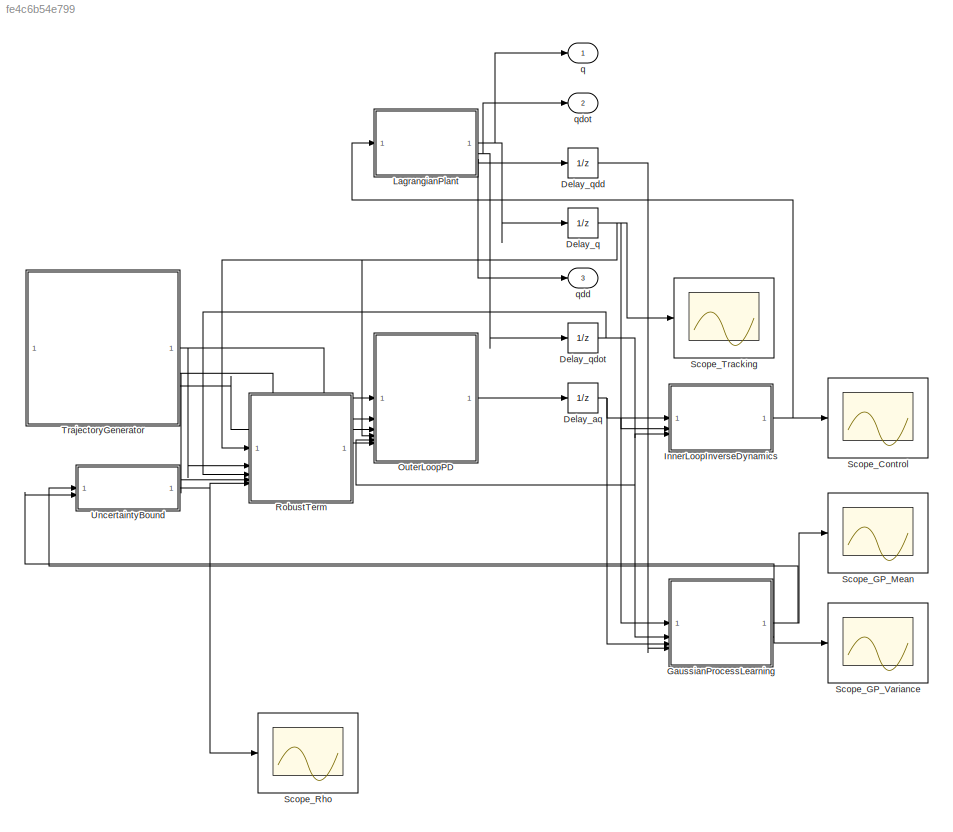
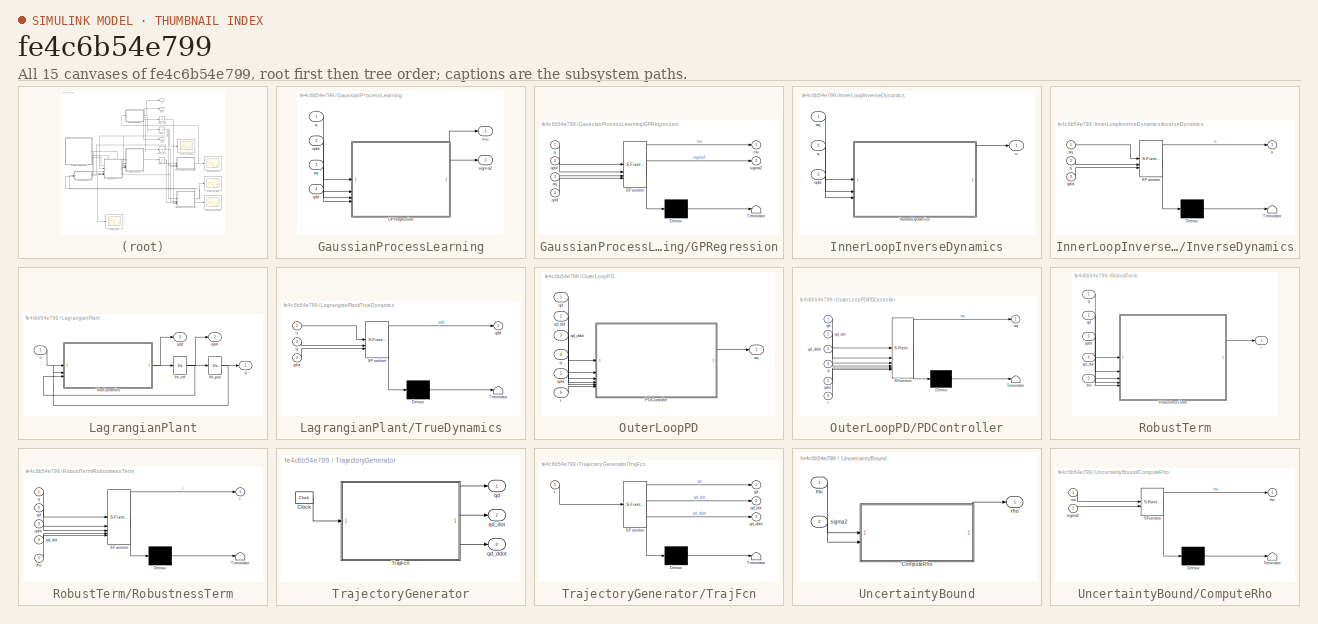
[diagram: thumbnail index - all 15 canvases of the model, root first then tree order]
MODEL slx_fe4c6b54e799
KIND model
CONFIG AbsTol = auto
CONFIG EnableMultiTasking = off
CONFIG FixedStep = auto
CONFIG MaxStep = auto
CONFIG MinStep = auto
CONFIG RelTol = 1e-3
CONFIG SampleTimeConstraint = Unconstrained
CONFIG SolverName = ode45
CONFIG StartTime = 0.0
CONFIG StopTime = 20
BLOCK [UnitDelay] Delay_aq
  HasFrameUpgradeWarning = on
  InitialCondition = [0;0]
  SampleTime = -1
BLOCK [UnitDelay] Delay_q
  HasFrameUpgradeWarning = on
  InitialCondition = [0;0]
  SampleTime = -1
BLOCK [UnitDelay] Delay_qdd
  HasFrameUpgradeWarning = on
  InitialCondition = [0;0]
  SampleTime = -1
BLOCK [UnitDelay] Delay_qdot
  HasFrameUpgradeWarning = on
  InitialCondition = [0;0]
  SampleTime = -1
BLOCK [SubSystem] GaussianProcessLearning
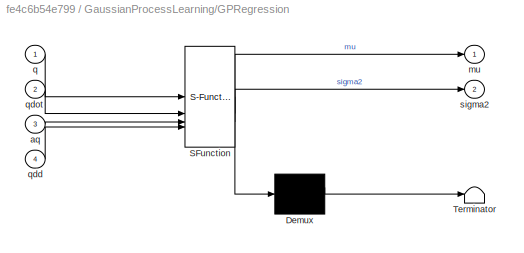
BLOCK [SubSystem] GaussianProcessLearning/GPRegression
  ErrorFcn = Stateflow.Translate.translate
  PermitHierarchicalResolution = ExplicitOnly
  SFBlockType = MATLAB Function
  TreatAsAtomicUnit = on
BLOCK [Demux] GaussianProcessLearning/GPRegression/ Demux 
  Outputs = 1
BLOCK [S-Function] GaussianProcessLearning/GPRegression/ SFunction 
  EnableBusSupport = off
  FunctionName = sf_sfun
  PortCounts = [4 3]
  SFcnIsStateOwnerBlock = off
  SFunctionDeploymentMode = off
  Tag = Stateflow S-Function 5
BLOCK [Terminator] GaussianProcessLearning/GPRegression/ Terminator 
BLOCK [Inport] GaussianProcessLearning/GPRegression/aq
  Port = 3
BLOCK [Outport] GaussianProcessLearning/GPRegression/mu
BLOCK [Inport] GaussianProcessLearning/GPRegression/q
BLOCK [Inport] GaussianProcessLearning/GPRegression/qdd
  Port = 4
BLOCK [Inport] GaussianProcessLearning/GPRegression/qdot
  Port = 2
BLOCK [Outport] GaussianProcessLearning/GPRegression/sigma2
  Port = 2
BLOCK [Inport] GaussianProcessLearning/aq
  Port = 3
  PortDimensions = 2
BLOCK [Outport] GaussianProcessLearning/mu
  PortDimensions = 2
BLOCK [Inport] GaussianProcessLearning/q
  PortDimensions = 2
BLOCK [Inport] GaussianProcessLearning/qdd
  Port = 4
  PortDimensions = 2
BLOCK [Inport] GaussianProcessLearning/qdot
  Port = 2
  PortDimensions = 2
BLOCK [Outport] GaussianProcessLearning/sigma2
  Port = 2
  PortDimensions = 2
BLOCK [SubSystem] InnerLoopInverseDynamics
BLOCK [SubSystem] InnerLoopInverseDynamics/InverseDynamics
  ErrorFcn = Stateflow.Translate.translate
  PermitHierarchicalResolution = ExplicitOnly
  SFBlockType = MATLAB Function
  TreatAsAtomicUnit = on
BLOCK [Demux] InnerLoopInverseDynamics/InverseDynamics/ Demux 
  Outputs = 1
BLOCK [S-Function] InnerLoopInverseDynamics/InverseDynamics/ SFunction 
  EnableBusSupport = off
  FunctionName = sf_sfun
  PortCounts = [3 2]
  SFcnIsStateOwnerBlock = off
  SFunctionDeploymentMode = off
  Tag = Stateflow S-Function 4
BLOCK [Terminator] InnerLoopInverseDynamics/InverseDynamics/ Terminator 
BLOCK [Inport] InnerLoopInverseDynamics/InverseDynamics/aq
BLOCK [Inport] InnerLoopInverseDynamics/InverseDynamics/q
  Port = 2
BLOCK [Inport] InnerLoopInverseDynamics/InverseDynamics/qdot
  Port = 3
BLOCK [Outport] InnerLoopInverseDynamics/InverseDynamics/u
BLOCK [Inport] InnerLoopInverseDynamics/aq
  PortDimensions = 2
BLOCK [Inport] InnerLoopInverseDynamics/q
  Port = 2
  PortDimensions = 2
BLOCK [Inport] InnerLoopInverseDynamics/qdot
  Port = 3
  PortDimensions = 2
BLOCK [Outport] InnerLoopInverseDynamics/u
  PortDimensions = 2
BLOCK [SubSystem] LagrangianPlant
BLOCK [Integrator] LagrangianPlant/Int_pos
  InitialCondition = [0; 0]
BLOCK [Integrator] LagrangianPlant/Int_vel
  InitialCondition = [0; 0]
BLOCK [SubSystem] LagrangianPlant/TrueDynamics
  ErrorFcn = Stateflow.Translate.translate
  PermitHierarchicalResolution = ExplicitOnly
  SFBlockType = MATLAB Function
  TreatAsAtomicUnit = on
BLOCK [Demux] LagrangianPlant/TrueDynamics/ Demux 
  Outputs = 1
BLOCK [S-Function] LagrangianPlant/TrueDynamics/ SFunction 
  EnableBusSupport = off
  FunctionName = sf_sfun
  PortCounts = [3 2]
  SFcnIsStateOwnerBlock = off
  SFunctionDeploymentMode = off
  Tag = Stateflow S-Function 7
BLOCK [Terminator] LagrangianPlant/TrueDynamics/ Terminator 
BLOCK [Inport] LagrangianPlant/TrueDynamics/q
  Port = 2
BLOCK [Outport] LagrangianPlant/TrueDynamics/qdd
BLOCK [Inport] LagrangianPlant/TrueDynamics/qdot
  Port = 3
BLOCK [Inport] LagrangianPlant/TrueDynamics/u
BLOCK [Outport] LagrangianPlant/q
  PortDimensions = 2
BLOCK [Outport] LagrangianPlant/qdd
  Port = 3
  PortDimensions = 2
BLOCK [Outport] LagrangianPlant/qdot
  Port = 2
  PortDimensions = 2
BLOCK [Inport] LagrangianPlant/u
  PortDimensions = 2
BLOCK [SubSystem] OuterLoopPD
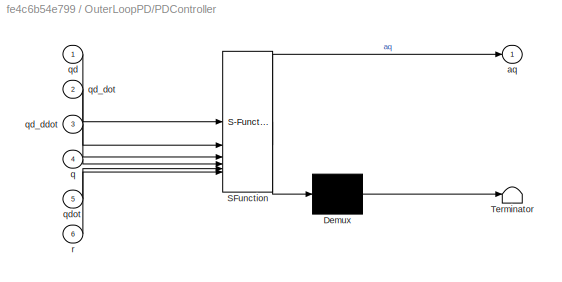
BLOCK [SubSystem] OuterLoopPD/PDController
  ErrorFcn = Stateflow.Translate.translate
  PermitHierarchicalResolution = ExplicitOnly
  SFBlockType = MATLAB Function
  TreatAsAtomicUnit = on
BLOCK [Demux] OuterLoopPD/PDController/ Demux 
  Outputs = 1
BLOCK [S-Function] OuterLoopPD/PDController/ SFunction 
  EnableBusSupport = off
  FunctionName = sf_sfun
  PortCounts = [6 2]
  SFcnIsStateOwnerBlock = off
  SFunctionDeploymentMode = off
  Tag = Stateflow S-Function 1
BLOCK [Terminator] OuterLoopPD/PDController/ Terminator 
BLOCK [Outport] OuterLoopPD/PDController/aq
BLOCK [Inport] OuterLoopPD/PDController/q
  Port = 4
BLOCK [Inport] OuterLoopPD/PDController/qd
BLOCK [Inport] OuterLoopPD/PDController/qd_ddot
  Port = 3
BLOCK [Inport] OuterLoopPD/PDController/qd_dot
  Port = 2
BLOCK [Inport] OuterLoopPD/PDController/qdot
  Port = 5
BLOCK [Inport] OuterLoopPD/PDController/r
  Port = 6
BLOCK [Outport] OuterLoopPD/aq
  PortDimensions = 2
BLOCK [Inport] OuterLoopPD/q
  Port = 4
  PortDimensions = 2
BLOCK [Inport] OuterLoopPD/qd
  PortDimensions = 2
BLOCK [Inport] OuterLoopPD/qd_ddot
  Port = 3
  PortDimensions = 2
BLOCK [Inport] OuterLoopPD/qd_dot
  Port = 2
  PortDimensions = 2
BLOCK [Inport] OuterLoopPD/qdot
  Port = 5
  PortDimensions = 2
BLOCK [Inport] OuterLoopPD/r
  Port = 6
  PortDimensions = 2
BLOCK [SubSystem] RobustTerm
BLOCK [SubSystem] RobustTerm/RobustnessTerm
  ErrorFcn = Stateflow.Translate.translate
  PermitHierarchicalResolution = ExplicitOnly
  SFBlockType = MATLAB Function
  TreatAsAtomicUnit = on
BLOCK [Demux] RobustTerm/RobustnessTerm/ Demux 
  Outputs = 1
BLOCK [S-Function] RobustTerm/RobustnessTerm/ SFunction 
  EnableBusSupport = off
  FunctionName = sf_sfun
  PortCounts = [5 2]
  SFcnIsStateOwnerBlock = off
  SFunctionDeploymentMode = off
  Tag = Stateflow S-Function 3
BLOCK [Terminator] RobustTerm/RobustnessTerm/ Terminator 
BLOCK [Inport] RobustTerm/RobustnessTerm/q
BLOCK [Inport] RobustTerm/RobustnessTerm/qd
  Port = 2
BLOCK [Inport] RobustTerm/RobustnessTerm/qd_dot
  Port = 4
BLOCK [Inport] RobustTerm/RobustnessTerm/qdot
  Port = 3
BLOCK [Outport] RobustTerm/RobustnessTerm/r
BLOCK [Inport] RobustTerm/RobustnessTerm/rho
  Port = 5
BLOCK [Inport] RobustTerm/q
  PortDimensions = 2
BLOCK [Inport] RobustTerm/qd
  Port = 2
  PortDimensions = 2
BLOCK [Inport] RobustTerm/qd_dot
  Port = 4
  PortDimensions = 2
BLOCK [Inport] RobustTerm/qdot
  Port = 3
  PortDimensions = 2
BLOCK [Outport] RobustTerm/r
  PortDimensions = 2
BLOCK [Inport] RobustTerm/rho
  Port = 5
  PortDimensions = 1
BLOCK [Scope] Scope_Control
  DataLogging = on
  DataLoggingVariableName = control_u
  Floating = off
  GraphicalSettings = {"GraphicalSettings":{"LegacySettings":true,"Style":{"Style":{"PlotType":"Auto"}}}}
  NumInputPorts = 1
  WasSavedAsWebScope = on
BLOCK [Scope] Scope_GP_Mean
  DataLogging = on
  DataLoggingVariableName = gp_mean
  Floating = off
  GraphicalSettings = {"GraphicalSettings":{"LegacySettings":true,"Style":{"Style":{"PlotType":"Auto"}}}}
  NumInputPorts = 1
  WasSavedAsWebScope = on
BLOCK [Scope] Scope_GP_Variance
  DataLogging = on
  DataLoggingVariableName = gp_var
  Floating = off
  GraphicalSettings = {"GraphicalSettings":{"LegacySettings":true,"Style":{"Style":{"PlotType":"Auto"}}}}
  NumInputPorts = 1
  WasSavedAsWebScope = on
BLOCK [Scope] Scope_Rho
  DataLogging = on
  DataLoggingVariableName = rho_bound
  Floating = off
  GraphicalSettings = {"GraphicalSettings":{"LegacySettings":true,"Style":{"Style":{"PlotType":"Auto"}}}}
  NumInputPorts = 1
  WasSavedAsWebScope = on
BLOCK [Scope] Scope_Tracking
  DataLogging = on
  DataLoggingVariableName = tracking
  Floating = off
  GraphicalSettings = {"GraphicalSettings":{"LegacySettings":true,"Style":{"Style":{"PlotType":"Auto"}}}}
  NumInputPorts = 1
  WasSavedAsWebScope = on
BLOCK [SubSystem] TrajectoryGenerator
BLOCK [Clock] TrajectoryGenerator/Clock
BLOCK [SubSystem] TrajectoryGenerator/TrajFcn
  ErrorFcn = Stateflow.Translate.translate
  PermitHierarchicalResolution = ExplicitOnly
  SFBlockType = MATLAB Function
  TreatAsAtomicUnit = on
BLOCK [Demux] TrajectoryGenerator/TrajFcn/ Demux 
  Outputs = 1
BLOCK [S-Function] TrajectoryGenerator/TrajFcn/ SFunction 
  EnableBusSupport = off
  FunctionName = sf_sfun
  PortCounts = [1 4]
  SFcnIsStateOwnerBlock = off
  SFunctionDeploymentMode = off
  Tag = Stateflow S-Function 2
BLOCK [Terminator] TrajectoryGenerator/TrajFcn/ Terminator 
BLOCK [Outport] TrajectoryGenerator/TrajFcn/qd
BLOCK [Outport] TrajectoryGenerator/TrajFcn/qd_ddot
  Port = 3
BLOCK [Outport] TrajectoryGenerator/TrajFcn/qd_dot
  Port = 2
BLOCK [Inport] TrajectoryGenerator/TrajFcn/t
BLOCK [Outport] TrajectoryGenerator/qd
BLOCK [Outport] TrajectoryGenerator/qd_ddot
  Port = 3
BLOCK [Outport] TrajectoryGenerator/qd_dot
  Port = 2
BLOCK [SubSystem] UncertaintyBound
BLOCK [SubSystem] UncertaintyBound/ComputeRho
  ErrorFcn = Stateflow.Translate.translate
  PermitHierarchicalResolution = ExplicitOnly
  SFBlockType = MATLAB Function
  TreatAsAtomicUnit = on
BLOCK [Demux] UncertaintyBound/ComputeRho/ Demux 
  Outputs = 1
BLOCK [S-Function] UncertaintyBound/ComputeRho/ SFunction 
  EnableBusSupport = off
  FunctionName = sf_sfun
  PortCounts = [2 2]
  SFcnIsStateOwnerBlock = off
  SFunctionDeploymentMode = off
  Tag = Stateflow S-Function 6
BLOCK [Terminator] UncertaintyBound/ComputeRho/ Terminator 
BLOCK [Inport] UncertaintyBound/ComputeRho/mu
BLOCK [Outport] UncertaintyBound/ComputeRho/rho
BLOCK [Inport] UncertaintyBound/ComputeRho/sigma2
  Port = 2
BLOCK [Inport] UncertaintyBound/mu
  PortDimensions = 2
BLOCK [Outport] UncertaintyBound/rho
  PortDimensions = 1
BLOCK [Inport] UncertaintyBound/sigma2
  Port = 2
  PortDimensions = 2
BLOCK [Outport] q
BLOCK [Outport] qdd
  Port = 3
BLOCK [Outport] qdot
  Port = 2
NET Delay_aq:1 -> GaussianProcessLearning:3, InnerLoopInverseDynamics:1
NET Delay_q:1 -> GaussianProcessLearning:1, InnerLoopInverseDynamics:2, OuterLoopPD:4, RobustTerm:1, Scope_Tracking:1
LINE Delay_qdd:1 -> GaussianProcessLearning:4
NET Delay_qdot:1 -> GaussianProcessLearning:2, InnerLoopInverseDynamics:3, OuterLoopPD:5, RobustTerm:3
LINE GaussianProcessLearning/GPRegression:1 -> GaussianProcessLearning/mu:1
LINE GaussianProcessLearning/GPRegression:2 -> GaussianProcessLearning/sigma2:1
LINE GaussianProcessLearning/aq:1 -> GaussianProcessLearning/GPRegression:3
LINE GaussianProcessLearning/q:1 -> GaussianProcessLearning/GPRegression:1
LINE GaussianProcessLearning/qdd:1 -> GaussianProcessLearning/GPRegression:4
LINE GaussianProcessLearning/qdot:1 -> GaussianProcessLearning/GPRegression:2
NET GaussianProcessLearning:1 -> Scope_GP_Mean:1, UncertaintyBound:1
NET GaussianProcessLearning:2 -> Scope_GP_Variance:1, UncertaintyBound:2
LINE InnerLoopInverseDynamics/InverseDynamics:1 -> InnerLoopInverseDynamics/u:1
LINE InnerLoopInverseDynamics/aq:1 -> InnerLoopInverseDynamics/InverseDynamics:1
LINE InnerLoopInverseDynamics/q:1 -> InnerLoopInverseDynamics/InverseDynamics:2
LINE InnerLoopInverseDynamics/qdot:1 -> InnerLoopInverseDynamics/InverseDynamics:3
NET InnerLoopInverseDynamics:1 -> LagrangianPlant:1, Scope_Control:1
NET LagrangianPlant/Int_pos:1 -> LagrangianPlant/TrueDynamics:2, LagrangianPlant/q:1
NET LagrangianPlant/Int_vel:1 -> LagrangianPlant/Int_pos:1, LagrangianPlant/TrueDynamics:3, LagrangianPlant/qdot:1
NET LagrangianPlant/TrueDynamics:1 -> LagrangianPlant/Int_vel:1, LagrangianPlant/qdd:1
LINE LagrangianPlant/u:1 -> LagrangianPlant/TrueDynamics:1
NET LagrangianPlant:1 -> Delay_q:1, q:1
NET LagrangianPlant:2 -> Delay_qdot:1, qdot:1
NET LagrangianPlant:3 -> Delay_qdd:1, qdd:1
LINE OuterLoopPD/PDController:1 -> OuterLoopPD/aq:1
LINE OuterLoopPD/q:1 -> OuterLoopPD/PDController:4
LINE OuterLoopPD/qd:1 -> OuterLoopPD/PDController:1
LINE OuterLoopPD/qd_ddot:1 -> OuterLoopPD/PDController:3
LINE OuterLoopPD/qd_dot:1 -> OuterLoopPD/PDController:2
LINE OuterLoopPD/qdot:1 -> OuterLoopPD/PDController:5
LINE OuterLoopPD/r:1 -> OuterLoopPD/PDController:6
LINE OuterLoopPD:1 -> Delay_aq:1
LINE RobustTerm/RobustnessTerm:1 -> RobustTerm/r:1
LINE RobustTerm/q:1 -> RobustTerm/RobustnessTerm:1
LINE RobustTerm/qd:1 -> RobustTerm/RobustnessTerm:2
LINE RobustTerm/qd_dot:1 -> RobustTerm/RobustnessTerm:4
LINE RobustTerm/qdot:1 -> RobustTerm/RobustnessTerm:3
LINE RobustTerm/rho:1 -> RobustTerm/RobustnessTerm:5
LINE RobustTerm:1 -> OuterLoopPD:6
LINE TrajectoryGenerator/Clock:1 -> TrajectoryGenerator/TrajFcn:1
LINE TrajectoryGenerator/TrajFcn:1 -> TrajectoryGenerator/qd:1
LINE TrajectoryGenerator/TrajFcn:2 -> TrajectoryGenerator/qd_dot:1
LINE TrajectoryGenerator/TrajFcn:3 -> TrajectoryGenerator/qd_ddot:1
NET TrajectoryGenerator:1 -> OuterLoopPD:1, RobustTerm:2
NET TrajectoryGenerator:2 -> OuterLoopPD:2, RobustTerm:4
LINE TrajectoryGenerator:3 -> OuterLoopPD:3
LINE UncertaintyBound/ComputeRho:1 -> UncertaintyBound/rho:1
LINE UncertaintyBound/mu:1 -> UncertaintyBound/ComputeRho:1
LINE UncertaintyBound/sigma2:1 -> UncertaintyBound/ComputeRho:2
NET UncertaintyBound:1 -> RobustTerm:5, Scope_Rho:1
note: NET lines group one-source signal fan-out (src -> all destinations, sorted); 1:1 wires keep LINE
CHART OuterLoopPD/PDController states=1 transitions=1
  STATE_LABEL 'eML_blk_kernel()'
  STATE_LABEL 'SCRIPT:\nfunction aq = PDController(qd,qd_dot,qd_ddot,q,qdot,r)\n%#codegen\n% Equation 11: aq = q̈d + KP(qd-q) + KD(q̇d-q̇) + r\naq = zeros(2,1);\nqd     = reshape(qd, [2,1]);\nqd_dot = reshape(qd_dot, [2,1]);\nqd_ddot= reshape(qd_ddot, [2,1]);\nq      = reshape(q, [2,1]);\nqdot   = reshape(qdot, [2,1]);\nr      = reshape(r, [2,1]);\nKP = [50 0; 0 30];\nKD = [12 0; 0 8];\ne1 = qd - q;\ne2 = qd_dot - qdot;\naq = ...<+32ch>'
CHART TrajectoryGenerator/TrajFcn states=1 transitions=1
  STATE_LABEL 'eML_blk_kernel()'
  STATE_LABEL 'SCRIPT:\nfunction [qd, qd_dot, qd_ddot] = TrajFcn(t)\n%#codegen\n% Sinusoidal trajectories (Section VI)\nA1 = 1; w1 = 1;\nqd1     = A1*sin(w1*t);\nqd1_dot = A1*w1*cos(w1*t);\nqd1_ddot= -A1*w1^2*sin(w1*t);\nA2 = 0.5; w2 = 0.5;\nqd2     = A2*sin(w2*t);\nqd2_dot = A2*w2*cos(w2*t);\nqd2_ddot= -A2*w2^2*sin(w2*t);\nqd     = [qd1; qd2];\nqd_dot = [qd1_dot; qd2_dot];\nqd_ddot= [qd1_ddot; qd2_ddot];\nend'
CHART RobustTerm/RobustnessTerm states=1 transitions=1
  STATE_LABEL 'eML_blk_kernel()'
  STATE_LABEL 'SCRIPT:\nfunction r = RobustnessTerm(q, qd, qdot, qd_dot, rho)\n%#codegen\nr = zeros(2,1);\n\nq      = reshape(q,2,1);\nqd     = reshape(qd,2,1);\nqdot   = reshape(qdot,2,1);\nqd_dot = reshape(qd_dot,2,1);\nrho    = max(rho(1),0);\n\ne = [q-qd; qdot-qd_dot];\n\nP = [31.0017    20.8343    0.6001    0.4017;\n     20.8343    25.0853    0.4017    0.8343;\n      0.6001    0.4017    0.0984   -0.0010;\n      0.4017    0...<+348ch>'
CHART InnerLoopInverseDynamics/InverseDynamics states=1 transitions=1
  STATE_LABEL 'eML_blk_kernel()'
  STATE_LABEL 'SCRIPT:\nfunction u = InverseDynamics(aq,q,qdot)\n%#codegen\n% Equation 4: u = Ĉq̇ + ĝ + M̂aq (with estimated parameters)\nu = zeros(2,1);\naq   = reshape(aq, [2,1]);\nq    = reshape(q, [2,1]);\nqdot = reshape(qdot, [2,1]);\n[M_hat, C_hat, g_hat] = robotEstimated(q, qdot);\nu = M_hat*aq + C_hat*qdot + g_hat;\nend\n\nfunction [M,C,g] = robotEstimated(q,dq)\n% Estimated dynamics (10% error from true)\nM = zeros(2...<+422ch>'
CHART GaussianProcessLearning/GPRegression states=1 transitions=1
  STATE_LABEL 'eML_blk_kernel()'
  STATE_LABEL "SCRIPT:\nfunction [mu, sigma2] = GPRegression(q,qdot,aq,qdd)\n%#codegen\n\nmu = zeros(2,1);\nsigma2 = zeros(2,1);\n\npersistent X_data y_data1 y_data2 n_obs\nif isempty(n_obs)\n    X_data = zeros(20,6);\n    y_data1 = zeros(20,1);\n    y_data2 = zeros(20,1);\n    n_obs = 0;\nend\n\nx_curr = [reshape(q,2,1); reshape(qdot,2,1); reshape(aq,2,1)]';\neta = reshape(qdd,2,1) - reshape(aq,2,1);\n\nn_obs = min(n_obs + 1, 20...<+1183ch>"
CHART UncertaintyBound/ComputeRho states=1 transitions=1
  STATE_LABEL 'eML_blk_kernel()'
  STATE_LABEL 'SCRIPT:\nfunction rho = ComputeRho(mu, sigma2)\n%#codegen\nrho = 0;\nmu = reshape(mu, [2,1]);\nsigma2 = reshape(sigma2, [2,1]);\nbeta_sqrt = 3.0;\nrho_i = zeros(2,1);\nfor i = 1:2\n    sigma_i = sqrt(max(sigma2(i), 1e-6));\n    lower = abs(mu(i) - beta_sqrt * sigma_i);\n    upper = abs(mu(i) + beta_sqrt * sigma_i);\n    rho_i(i) = max(lower, upper);\nend\nrho = sqrt(sum(rho_i.^2));\nrho_max = 100;\nrho = min(rho,...<+14ch>'
CHART LagrangianPlant/TrueDynamics states=1 transitions=1
  STATE_LABEL 'eML_blk_kernel()'
  STATE_LABEL 'SCRIPT:\nfunction qdd = TrueDynamics(u, q, qdot)\n%#codegen\nu    = reshape(u,    2, 1);\nq    = reshape(q,    2, 1);\nqdot = reshape(qdot, 2, 1);\n\n[M, C, g] = robotTrue(q, qdot);\n\n% Small regularization for numerical robustness\nqdd = (M + 1e-10*eye(2)) \\ (u - C*qdot - g);\nend\n\nfunction [M, C, g] = robotTrue(q, qdot)\nm1 = 1.0;  m2 = 1.0;\nL1 = 2.0;  L2 = 1.0;\nq1 = q(1); q2 = q(2);\ndq1 = qdot(1); dq2 = q...<+259ch>'
CHART  states=0 transitions=0
CHART  states=0 transitions=0
CHART  states=0 transitions=0
CHART  states=0 transitions=0
CHART  states=0 transitions=0
CHART  states=0 transitions=0
CHART  states=0 transitions=0
